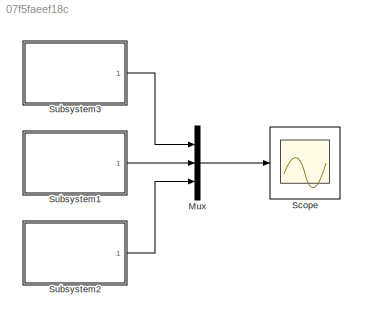
MODEL slx_07f5faeef18c
KIND model
CONFIG AbsTol = auto
CONFIG EnableMultiTasking = off
CONFIG FixedStep = auto
CONFIG MaxStep = auto
CONFIG MinStep = auto
CONFIG RelTol = 1e-3
CONFIG SampleTimeConstraint = Unconstrained
CONFIG Solver = VariableStepAuto
CONFIG SolverName = VariableStepAuto
CONFIG StartTime = 0.0
CONFIG StopTime = 10.0
BLOCK [Mux] Mux
  DisplayOption = bar
  Inputs = 3
  Ports = [3, 1]
BLOCK [Scope] Scope
  Floating = off
  NumInputPorts = 1
  Ports = [1]
  ScopeSpecificationString = Simulink.scopes.TimeScopeBlockCfg('CurrentConfiguration', extmgr.ConfigurationSet(extmgr.Configuration('Core','General UI',true),extmgr.Configuration('Core','Source UI',true),extmgr.Configuration('Sources','WiredSimulink',true),extmgr.Configuration('Visuals','Time Domain',true,'SerializedDisplays',{struct('MinYLimReal','-1.24975','MaxYLimReal','1.2498','YLabelReal','','MinYLimMag','0.00000','MaxYL...<+1385ch>
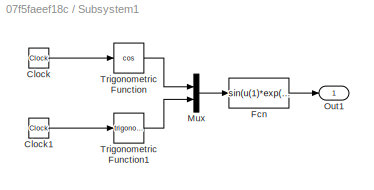
BLOCK [SubSystem] Subsystem1
  Ports = [0, 1]
  RequestExecContextInheritance = off
BLOCK [Clock] Subsystem1/Clock
BLOCK [Clock] Subsystem1/Clock1
BLOCK [Fcn] Subsystem1/Fcn
  Expr = sin(u(1)*exp(2.1*(-u(2))))
BLOCK [Mux] Subsystem1/Mux
  DisplayOption = bar
  Inputs = 2
  Ports = [2, 1]
BLOCK [Outport] Subsystem1/Out1
BLOCK [Trigonometry] Subsystem1/Trigonometric Function
  Operator = cos
  Ports = [1, 1]
BLOCK [Trigonometry] Subsystem1/Trigonometric Function1
  Ports = [1, 1]
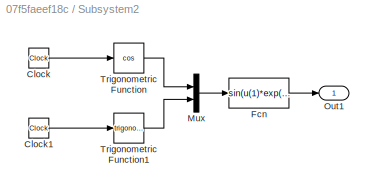
BLOCK [SubSystem] Subsystem2
  Ports = [0, 1]
  RequestExecContextInheritance = off
BLOCK [Clock] Subsystem2/Clock
BLOCK [Clock] Subsystem2/Clock1
BLOCK [Fcn] Subsystem2/Fcn
  Expr = sin(u(1)*exp(3.1*(-u(2))))
BLOCK [Mux] Subsystem2/Mux
  DisplayOption = bar
  Inputs = 2
  Ports = [2, 1]
BLOCK [Outport] Subsystem2/Out1
BLOCK [Trigonometry] Subsystem2/Trigonometric Function
  Operator = cos
  Ports = [1, 1]
BLOCK [Trigonometry] Subsystem2/Trigonometric Function1
  Ports = [1, 1]
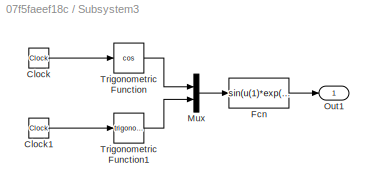
BLOCK [SubSystem] Subsystem3
  Ports = [0, 1]
  RequestExecContextInheritance = off
BLOCK [Clock] Subsystem3/Clock
BLOCK [Clock] Subsystem3/Clock1
BLOCK [Fcn] Subsystem3/Fcn
  Expr = sin(u(1)*exp(1.1*(-u(2))))
BLOCK [Mux] Subsystem3/Mux
  DisplayOption = bar
  Inputs = 2
  Ports = [2, 1]
BLOCK [Outport] Subsystem3/Out1
BLOCK [Trigonometry] Subsystem3/Trigonometric Function
  Operator = cos
  Ports = [1, 1]
BLOCK [Trigonometry] Subsystem3/Trigonometric Function1
  Ports = [1, 1]
LINE Mux:1 -> Scope:1
LINE Subsystem1/Clock1:1 -> Subsystem1/Trigonometric Function1:1
LINE Subsystem1/Clock:1 -> Subsystem1/Trigonometric Function:1
LINE Subsystem1/Fcn:1 -> Subsystem1/Out1:1
LINE Subsystem1/Mux:1 -> Subsystem1/Fcn:1
LINE Subsystem1/Trigonometric Function1:1 -> Subsystem1/Mux:2
LINE Subsystem1/Trigonometric Function:1 -> Subsystem1/Mux:1
LINE Subsystem1:1 -> Mux:2
LINE Subsystem2/Clock1:1 -> Subsystem2/Trigonometric Function1:1
LINE Subsystem2/Clock:1 -> Subsystem2/Trigonometric Function:1
LINE Subsystem2/Fcn:1 -> Subsystem2/Out1:1
LINE Subsystem2/Mux:1 -> Subsystem2/Fcn:1
LINE Subsystem2/Trigonometric Function1:1 -> Subsystem2/Mux:2
LINE Subsystem2/Trigonometric Function:1 -> Subsystem2/Mux:1
LINE Subsystem2:1 -> Mux:3
LINE Subsystem3/Clock1:1 -> Subsystem3/Trigonometric Function1:1
LINE Subsystem3/Clock:1 -> Subsystem3/Trigonometric Function:1
LINE Subsystem3/Fcn:1 -> Subsystem3/Out1:1
LINE Subsystem3/Mux:1 -> Subsystem3/Fcn:1
LINE Subsystem3/Trigonometric Function1:1 -> Subsystem3/Mux:2
LINE Subsystem3/Trigonometric Function:1 -> Subsystem3/Mux:1
LINE Subsystem3:1 -> Mux:1
